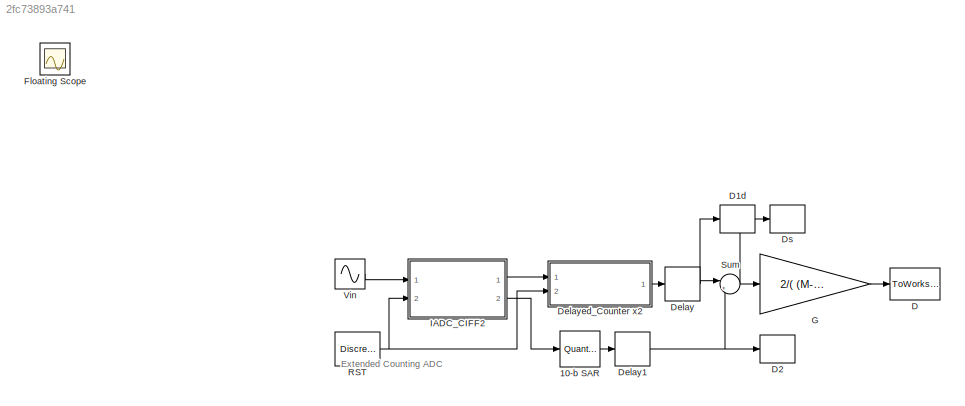
MODEL slx_2fc73893a741
KIND model
CONFIG AbsTol = auto
CONFIG EnableMultiTasking = on
CONFIG FixedStep = auto
CONFIG MaxStep = auto
CONFIG MinStep = auto
CONFIG RelTol = 1e-3
CONFIG SampleTimeConstraint = Unconstrained
CONFIG Solver = ode45
CONFIG SolverName = ode45
CONFIG StartTime = 0.0
CONFIG StopTime = 100e-6
BLOCK [Quantizer] 10-b SAR
  LinearizeAsGain = off
  QuantizationInterval = vfs/1024
BLOCK [ToWorkspace] D
  MaxDataPoints = inf
  Ports = [1]
  SampleTime = -1
  VariableName = ADCout
BLOCK [ToWorkspace] D1d
  MaxDataPoints = inf
  Ports = [1]
  SampleTime = -1
  VariableName = D1d
BLOCK [ToWorkspace] D2
  MaxDataPoints = inf
  Ports = [1]
  SampleTime = -1
  VariableName = D2
BLOCK [Delay] Delay
  DelayLength = 1
  InitialCondition = 0
  InputPortMap = u0
  Ports = [1, 1]
BLOCK [Delay] Delay1
  DelayLength = 1
  InitialCondition = 0
  InputPortMap = u0
  Ports = [1, 1]
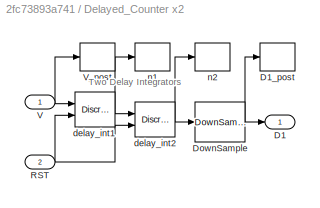
BLOCK [SubSystem] Delayed_Counter x2
  Ports = [2, 1]
  RequestExecContextInheritance = off
BLOCK [Outport] Delayed_Counter x2/D1
  IconDisplay = Port number
  VectorParamsAs1DForOutWhenUnconnected = off
BLOCK [ToWorkspace] Delayed_Counter x2/D1_post
  MaxDataPoints = inf
  Ports = [1]
  SampleTime = -1
  VariableName = D1
BLOCK [DownSample] Delayed_Counter x2/DownSample
  InputProcessing = Elements as channels (sample based)
  N = OSR
  RateOptions = Allow multirate processing
  phase = OSR-1
BLOCK [Inport] Delayed_Counter x2/RST
  IconDisplay = Port number
  Port = 2
BLOCK [Inport] Delayed_Counter x2/V
  IconDisplay = Port number
BLOCK [ToWorkspace] Delayed_Counter x2/V_post
  MaxDataPoints = inf
  Ports = [1]
  SampleTime = -1
  VariableName = V
BLOCK [DiscreteFilter] Delayed_Counter x2/delay_int1
  Denominator = [1 -1]
  ExternalReset = Rising
  InputPortMap = u0,r7
  Numerator = [0 1]
  Ports = [2, 1]
BLOCK [DiscreteFilter] Delayed_Counter x2/delay_int2
  Denominator = [1 -1]
  ExternalReset = Rising
  InputPortMap = u0,r7
  Numerator = [0 1]
  Ports = [2, 1]
BLOCK [ToWorkspace] Delayed_Counter x2/n1
  MaxDataPoints = inf
  Ports = [1]
  SampleTime = -1
  VariableName = n1
BLOCK [ToWorkspace] Delayed_Counter x2/n2
  MaxDataPoints = inf
  Ports = [1]
  SampleTime = -1
  VariableName = n2
BLOCK [ToWorkspace] Ds
  MaxDataPoints = inf
  Ports = [1]
  SampleTime = -1
  VariableName = Ds
BLOCK [Scope] Floating Scope
  Floating = off
  IOType = viewer
  NumInputPorts = 1
  Ports = []
  ScopeSpecificationString = C++SS(StrPVP('Location','[376, 294, 963, 755]'),StrPVP('Open','off'),MxPVP('AxesTitles',54,'struct(''axes1'',''%<SignalLabel>'')'),StrPVP('DataFormat','StructureWithTime'),StrPVP('BlockParamSampleTime','0'),StrPVP('LimitDataPoints','on'),StrPVP('Decimation','1'),StrPVP('BlockParamSampleInput','off'))
BLOCK [Gain] G
  Gain = 2/( (M-1)*(M-2) )
  OutDataTypeStr = Inherit: Inherit via internal rule
  ParamDataTypeStr = Inherit: Inherit via internal rule
  SaturateOnIntegerOverflow = off
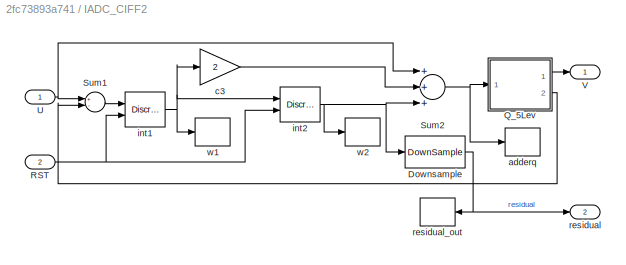
BLOCK [SubSystem] IADC_CIFF2
  Ports = [2, 2]
  RequestExecContextInheritance = off
BLOCK [DownSample] IADC_CIFF2/Downsample
  InputProcessing = Elements as channels (sample based)
  N = OSR
  RateOptions = Allow multirate processing
  phase = OSR-1
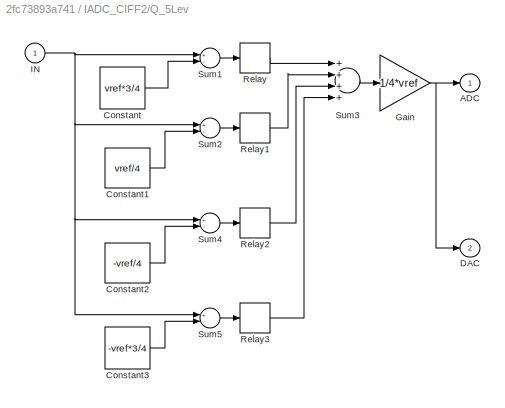
BLOCK [SubSystem] IADC_CIFF2/Q_5Lev
  Ports = [1, 2]
  RequestExecContextInheritance = off
BLOCK [Outport] IADC_CIFF2/Q_5Lev/ADC
  IconDisplay = Port number
  VectorParamsAs1DForOutWhenUnconnected = off
BLOCK [Constant] IADC_CIFF2/Q_5Lev/Constant
  Value = vref*3/4
BLOCK [Constant] IADC_CIFF2/Q_5Lev/Constant1
  Value = vref/4
BLOCK [Constant] IADC_CIFF2/Q_5Lev/Constant2
  Value = -vref/4
BLOCK [Constant] IADC_CIFF2/Q_5Lev/Constant3
  Value = -vref*3/4
BLOCK [Outport] IADC_CIFF2/Q_5Lev/DAC
  IconDisplay = Port number
  Port = 2
  VectorParamsAs1DForOutWhenUnconnected = off
BLOCK [Gain] IADC_CIFF2/Q_5Lev/Gain
  Gain = 1/4*vref
  OutDataTypeStr = Inherit: Inherit via internal rule
  ParamDataTypeStr = Inherit: Inherit via internal rule
  SaturateOnIntegerOverflow = off
BLOCK [Inport] IADC_CIFF2/Q_5Lev/IN
  IconDisplay = Port number
BLOCK [Relay] IADC_CIFF2/Q_5Lev/Relay
  OffOutputValue = -1
  SampleTime = tclk
BLOCK [Relay] IADC_CIFF2/Q_5Lev/Relay1
  OffOutputValue = -1
  SampleTime = tclk
BLOCK [Relay] IADC_CIFF2/Q_5Lev/Relay2
  OffOutputValue = -1
  SampleTime = tclk
BLOCK [Relay] IADC_CIFF2/Q_5Lev/Relay3
  OffOutputValue = -1
  SampleTime = tclk
BLOCK [Sum] IADC_CIFF2/Q_5Lev/Sum1
  Inputs = +-
  Ports = [2, 1]
BLOCK [Sum] IADC_CIFF2/Q_5Lev/Sum2
  Inputs = +-
  Ports = [2, 1]
BLOCK [Sum] IADC_CIFF2/Q_5Lev/Sum3
  Inputs = ++++
  Ports = [4, 1]
BLOCK [Sum] IADC_CIFF2/Q_5Lev/Sum4
  Inputs = +-
  Ports = [2, 1]
BLOCK [Sum] IADC_CIFF2/Q_5Lev/Sum5
  Inputs = +-
  Ports = [2, 1]
BLOCK [Inport] IADC_CIFF2/RST
  IconDisplay = Port number
  Port = 2
BLOCK [Sum] IADC_CIFF2/Sum1
  Inputs = +-
  Ports = [2, 1]
BLOCK [Sum] IADC_CIFF2/Sum2
  Inputs = +++
  Ports = [3, 1]
BLOCK [Inport] IADC_CIFF2/U
  IconDisplay = Port number
BLOCK [Outport] IADC_CIFF2/V
  IconDisplay = Port number
  VectorParamsAs1DForOutWhenUnconnected = off
BLOCK [ToWorkspace] IADC_CIFF2/adderq
  MaxDataPoints = inf
  Ports = [1]
  SampleTime = -1
  VariableName = adderq
BLOCK [Gain] IADC_CIFF2/c3
  Gain = 2
BLOCK [DiscreteFilter] IADC_CIFF2/int1
  Denominator = [1 -1]
  ExternalReset = Rising
  InputPortMap = u0,r7
  Numerator = [0 1]
  Ports = [2, 1]
BLOCK [DiscreteFilter] IADC_CIFF2/int2
  Denominator = [1 -1]
  ExternalReset = Rising
  InputPortMap = u0,r7
  Numerator = [0 1]
  Ports = [2, 1]
BLOCK [Outport] IADC_CIFF2/residual
  IconDisplay = Port number
  Port = 2
  VectorParamsAs1DForOutWhenUnconnected = off
BLOCK [ToWorkspace] IADC_CIFF2/residual_out
  MaxDataPoints = inf
  Ports = [1]
  SampleTime = -1
  VariableName = residual
BLOCK [ToWorkspace] IADC_CIFF2/w1
  MaxDataPoints = inf
  Ports = [1]
  SampleTime = -1
  VariableName = w1
BLOCK [ToWorkspace] IADC_CIFF2/w2
  MaxDataPoints = inf
  Ports = [1]
  SampleTime = -1
  VariableName = w2
BLOCK [DiscretePulseGenerator] RST
  Period = OSR
  Ports = [0, 1]
  SampleTime = tclk
BLOCK [Sum] Sum
  IconShape = round
  InputSameDT = off
  Inputs = |++
  OutDataTypeStr = Inherit: Inherit via internal rule
  Ports = [2, 1]
  SaturateOnIntegerOverflow = off
BLOCK [Sin] Vin
  Amplitude = vin_amp
  Frequency = fsig*2*pi
  Ports = [0, 1]
  SampleTime = tclk
ANNOTATION (root): Extended Counting ADC
ANNOTATION Delayed_Counter x2: Two Delay Integrators
LINE 10-b SAR:1 -> Delay1:1
NET Delay1:1 -> D2:1, Sum:2
NET Delay:1 -> D1d:1, Sum:1
NET Delayed_Counter x2/DownSample:1 -> Delayed_Counter x2/D1:1, Delayed_Counter x2/D1_post:1
NET Delayed_Counter x2/RST:1 -> Delayed_Counter x2/delay_int1:2, Delayed_Counter x2/delay_int2:2
NET Delayed_Counter x2/V:1 -> Delayed_Counter x2/V_post:1, Delayed_Counter x2/delay_int1:1
NET Delayed_Counter x2/delay_int1:1 -> Delayed_Counter x2/delay_int2:1, Delayed_Counter x2/n1:1
NET Delayed_Counter x2/delay_int2:1 -> Delayed_Counter x2/DownSample:1, Delayed_Counter x2/n2:1
LINE Delayed_Counter x2:1 -> Delay:1
LINE G:1 -> D:1
NET IADC_CIFF2/Downsample:1 -> IADC_CIFF2/residual:1, IADC_CIFF2/residual_out:1
LINE IADC_CIFF2/Q_5Lev/Constant1:1 -> IADC_CIFF2/Q_5Lev/Sum2:2
LINE IADC_CIFF2/Q_5Lev/Constant2:1 -> IADC_CIFF2/Q_5Lev/Sum4:2
LINE IADC_CIFF2/Q_5Lev/Constant3:1 -> IADC_CIFF2/Q_5Lev/Sum5:2
LINE IADC_CIFF2/Q_5Lev/Constant:1 -> IADC_CIFF2/Q_5Lev/Sum1:2
NET IADC_CIFF2/Q_5Lev/Gain:1 -> IADC_CIFF2/Q_5Lev/ADC:1, IADC_CIFF2/Q_5Lev/DAC:1
NET IADC_CIFF2/Q_5Lev/IN:1 -> IADC_CIFF2/Q_5Lev/Sum1:1, IADC_CIFF2/Q_5Lev/Sum2:1, IADC_CIFF2/Q_5Lev/Sum4:1, IADC_CIFF2/Q_5Lev/Sum5:1
LINE IADC_CIFF2/Q_5Lev/Relay1:1 -> IADC_CIFF2/Q_5Lev/Sum3:2
LINE IADC_CIFF2/Q_5Lev/Relay2:1 -> IADC_CIFF2/Q_5Lev/Sum3:3
LINE IADC_CIFF2/Q_5Lev/Relay3:1 -> IADC_CIFF2/Q_5Lev/Sum3:4
LINE IADC_CIFF2/Q_5Lev/Relay:1 -> IADC_CIFF2/Q_5Lev/Sum3:1
LINE IADC_CIFF2/Q_5Lev/Sum1:1 -> IADC_CIFF2/Q_5Lev/Relay:1
LINE IADC_CIFF2/Q_5Lev/Sum2:1 -> IADC_CIFF2/Q_5Lev/Relay1:1
LINE IADC_CIFF2/Q_5Lev/Sum3:1 -> IADC_CIFF2/Q_5Lev/Gain:1
LINE IADC_CIFF2/Q_5Lev/Sum4:1 -> IADC_CIFF2/Q_5Lev/Relay2:1
LINE IADC_CIFF2/Q_5Lev/Sum5:1 -> IADC_CIFF2/Q_5Lev/Relay3:1
LINE IADC_CIFF2/Q_5Lev:1 -> IADC_CIFF2/V:1
LINE IADC_CIFF2/Q_5Lev:2 -> IADC_CIFF2/Sum1:2
NET IADC_CIFF2/RST:1 -> IADC_CIFF2/int1:2, IADC_CIFF2/int2:2
LINE IADC_CIFF2/Sum1:1 -> IADC_CIFF2/int1:1
NET IADC_CIFF2/Sum2:1 -> IADC_CIFF2/Q_5Lev:1, IADC_CIFF2/adderq:1
NET IADC_CIFF2/U:1 -> IADC_CIFF2/Sum1:1, IADC_CIFF2/Sum2:1
LINE IADC_CIFF2/c3:1 -> IADC_CIFF2/Sum2:2
NET IADC_CIFF2/int1:1 -> IADC_CIFF2/c3:1, IADC_CIFF2/int2:1, IADC_CIFF2/w1:1
NET IADC_CIFF2/int2:1 -> IADC_CIFF2/Downsample:1, IADC_CIFF2/Sum2:3, IADC_CIFF2/w2:1
LINE IADC_CIFF2:1 -> Delayed_Counter x2:1
LINE IADC_CIFF2:2 -> 10-b SAR:1
NET RST:1 -> Delayed_Counter x2:2, IADC_CIFF2:2
NET Sum:1 -> Ds:1, G:1
LINE Vin:1 -> IADC_CIFF2:1
note: NET lines group one-source signal fan-out (src -> all destinations, sorted); 1:1 wires keep LINE
